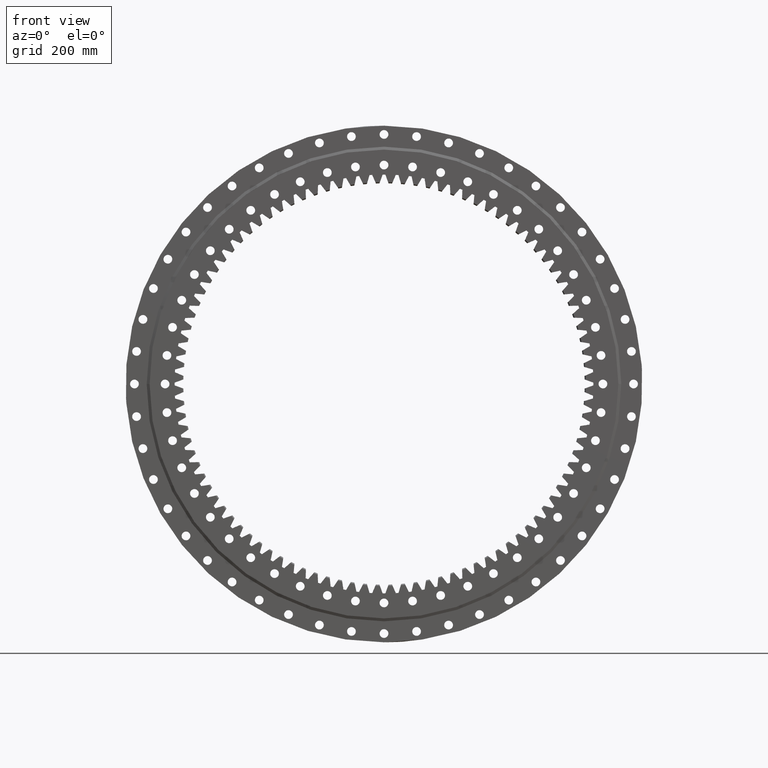
[diagram: clean part render]
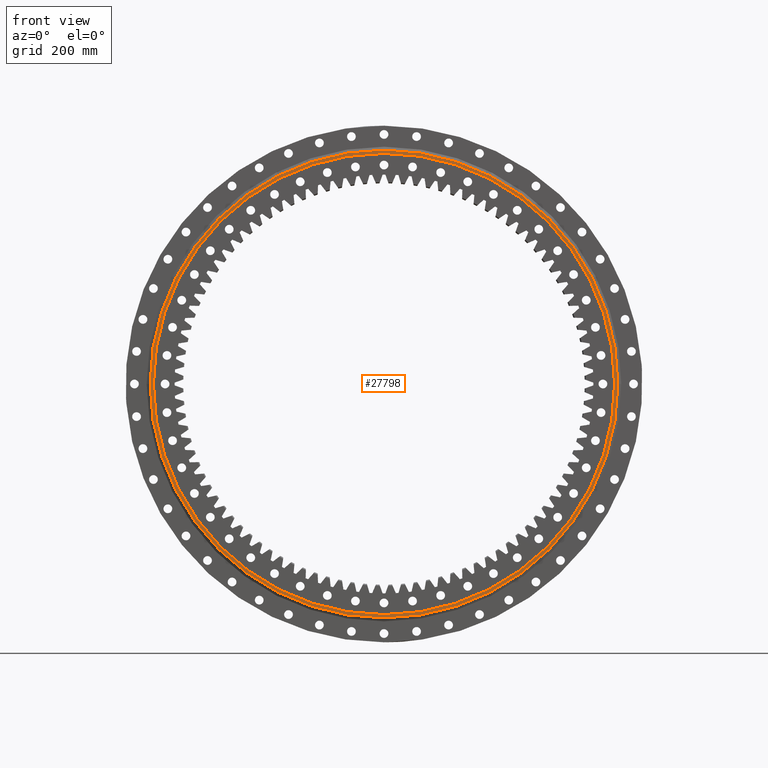
[diagram: same view with one face highlighted and labeled with its STEP entity id]
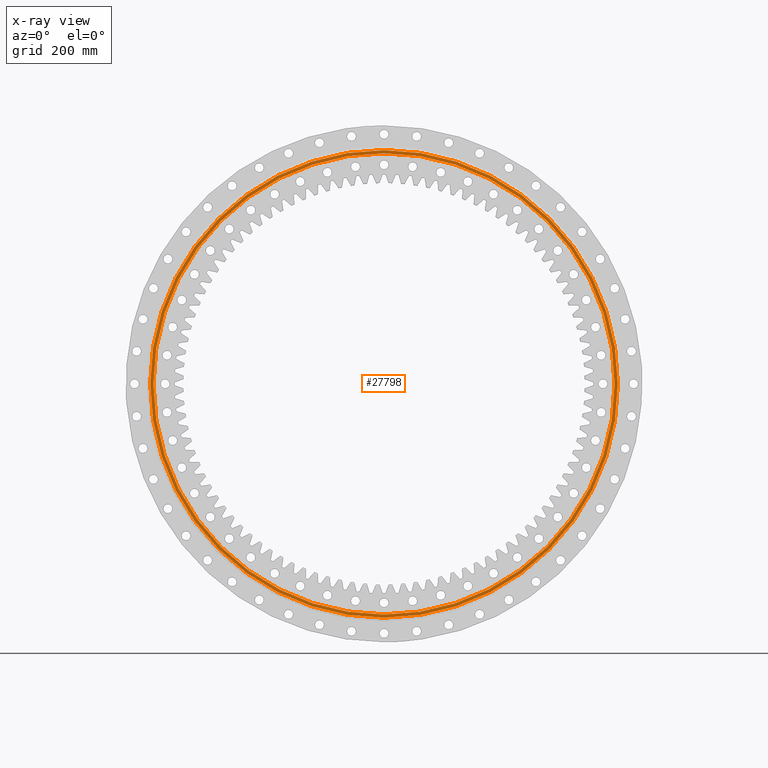
[diagram: x-ray of the same camera — body ghosted, the highlighted face saturated]
A machine part, front view. The second image highlights one B-rep face of the part: STEP entity #27798.
The next image is the same camera in x-ray: the body ghosted, the highlighted face saturated — about 0% of this face is hidden behind the body in this view.
In plain terms, the highlighted planar face has unit normal (-0, -1, 0).
Its self-contained STEP definition (entity closure, byte-faithful):
#529 = VERTEX_POINT ( 'NONE', #9348 ) ;
#678 = CARTESIAN_POINT ( 'NONE',  ( 3.870926173165402500E-014, -64.99999999999973000, 790.0000000000000000 ) ) ;
#1046 = EDGE_CURVE ( 'NONE', #26585, #529, #10668, .T. ) ;
#3548 = CARTESIAN_POINT ( 'NONE',  ( -1.461411887879927600E-013, -64.99999999999982900, -790.0000000000000000 ) ) ;
#4965 = EDGE_CURVE ( 'NONE', #8703, #23861, #19232, .T. ) ;
#5469 = CARTESIAN_POINT ( 'NONE',  ( 3.870926173165401900E-014, -64.99999999999974400, 790.0000000000000000 ) ) ;
#5569 = DIRECTION ( 'NONE',  ( -7.914688832368751900E-017, -1.000000000000000000, 6.148959851358355100E-017 ) ) ;
#6353 = ORIENTED_EDGE ( 'NONE', *, *, #15078, .T. ) ;
#7147 = ORIENTED_EDGE ( 'NONE', *, *, #1046, .T. ) ;
#8703 = VERTEX_POINT ( 'NONE', #678 ) ;
#8868 = FACE_OUTER_BOUND ( 'NONE', #12259, .T. ) ;
#9348 = CARTESIAN_POINT ( 'NONE',  ( 3.931988439519786800E-014, -64.99999999999973000, 801.0000000000001100 ) ) ;
#9400 = DIRECTION ( 'NONE',  ( 5.551115123125783900E-017, 6.930231115013460000E-017, 1.000000000000000000 ) ) ;
#9437 = DIRECTION ( 'NONE',  ( -7.914688832368751900E-017, -1.000000000000000000, 6.148959851358355100E-017 ) ) ;
#9467 = CARTESIAN_POINT ( 'NONE',  ( -5.144547741039671300E-015, -64.99999999999978700, 3.455291605158188600E-015 ) ) ;
#9502 = EDGE_CURVE ( 'NONE', #23861, #8703, #30659, .T. ) ;
#9901 = AXIS2_PLACEMENT_3D ( 'NONE', #5469, #5569, #22526 ) ;
#10668 = CIRCLE ( 'NONE', #26516, 801.0000000000001100 ) ;
#11306 = ORIENTED_EDGE ( 'NONE', *, *, #9502, .F. ) ;
#11778 = CIRCLE ( 'NONE', #28637, 801.0000000000001100 ) ;
#12259 = EDGE_LOOP ( 'NONE', ( #6353, #7147 ) ) ;
#13868 = DIRECTION ( 'NONE',  ( 5.551115123125783900E-017, 7.026728003956687400E-017, 1.000000000000000000 ) ) ;
#13876 = DIRECTION ( 'NONE',  ( -7.914688832368751900E-017, -1.000000000000000000, 6.148959851358355100E-017 ) ) ;
#13904 = CARTESIAN_POINT ( 'NONE',  ( -5.144547741039671300E-015, -64.99999999999978700, 2.657299779401122100E-015 ) ) ;
#15078 = EDGE_CURVE ( 'NONE', #529, #26585, #11778, .T. ) ;
#15244 = PLANE ( 'NONE',  #9901 ) ;
#15731 = DIRECTION ( 'NONE',  ( 5.551115123125783900E-017, 7.026728003956687400E-017, 1.000000000000000000 ) ) ;
#15793 = CARTESIAN_POINT ( 'NONE',  ( -5.144547741039671300E-015, -64.99999999999978700, 2.657299779401122100E-015 ) ) ;
#15874 = DIRECTION ( 'NONE',  ( -7.914688832368751900E-017, -1.000000000000000000, 6.148959851358355100E-017 ) ) ;
#19232 = CIRCLE ( 'NONE', #21139, 790.0000000000000000 ) ;
#20217 = FACE_BOUND ( 'NONE', #27824, .T. ) ;
#21139 = AXIS2_PLACEMENT_3D ( 'NONE', #15793, #15874, #15731 ) ;
#21888 = ORIENTED_EDGE ( 'NONE', *, *, #4965, .F. ) ;
#22130 = AXIS2_PLACEMENT_3D ( 'NONE', #13904, #13876, #13868 ) ;
#22526 = DIRECTION ( 'NONE',  ( 5.551115123125783900E-017, 6.148959851358355100E-017, 1.000000000000000000 ) ) ;
#23861 = VERTEX_POINT ( 'NONE', #3548 ) ;
#24410 = CARTESIAN_POINT ( 'NONE',  ( -1.473094327195698900E-013, -64.99999999999982900, -801.0000000000001100 ) ) ;
#26516 = AXIS2_PLACEMENT_3D ( 'NONE', #29075, #29042, #29005 ) ;
#26585 = VERTEX_POINT ( 'NONE', #24410 ) ;
#27798 = ADVANCED_FACE ( 'NONE', ( #20217, #8868 ), #15244, .T. ) ;
#27824 = EDGE_LOOP ( 'NONE', ( #21888, #11306 ) ) ;
#28637 = AXIS2_PLACEMENT_3D ( 'NONE', #9467, #9437, #9400 ) ;
#29005 = DIRECTION ( 'NONE',  ( 5.551115123125783900E-017, 6.930231115013460000E-017, 1.000000000000000000 ) ) ;
#29042 = DIRECTION ( 'NONE',  ( -7.914688832368751900E-017, -1.000000000000000000, 6.148959851358355100E-017 ) ) ;
#29075 = CARTESIAN_POINT ( 'NONE',  ( -5.144547741039671300E-015, -64.99999999999978700, 3.455291605158188600E-015 ) ) ;
#30659 = CIRCLE ( 'NONE', #22130, 790.0000000000000000 ) ;